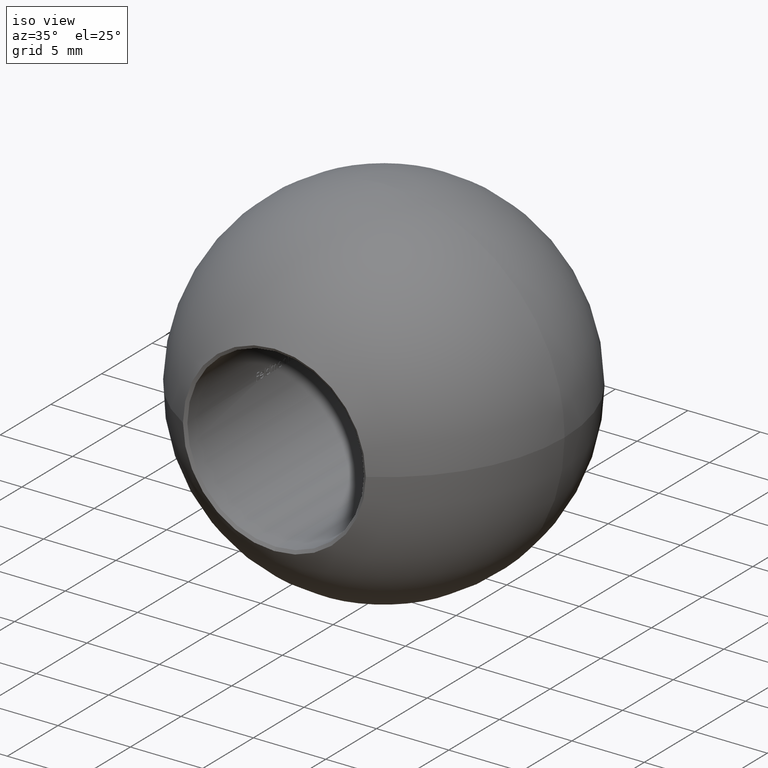
[diagram: clean part render]
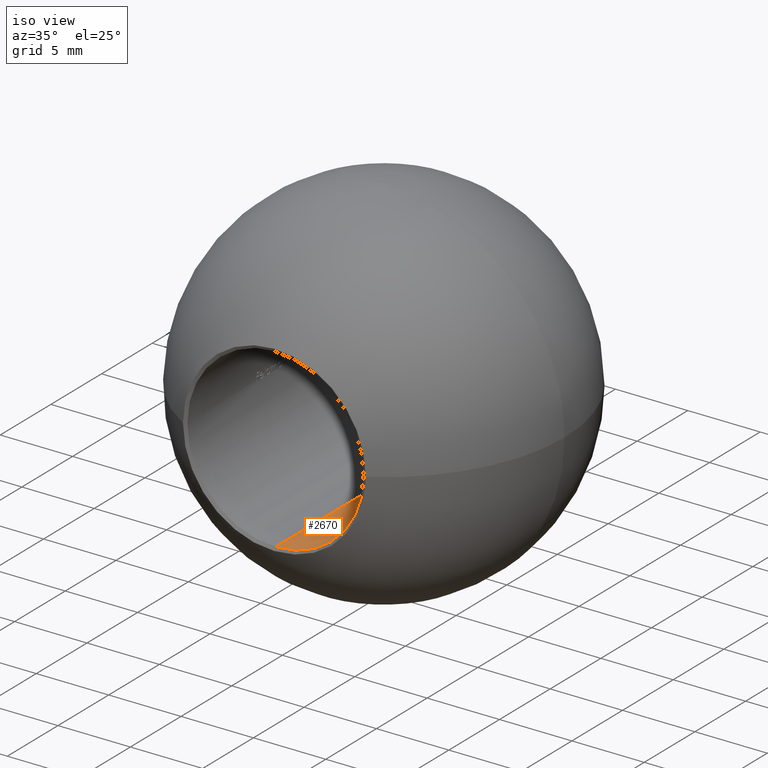
[diagram: same view with one face highlighted and labeled with its STEP entity id]
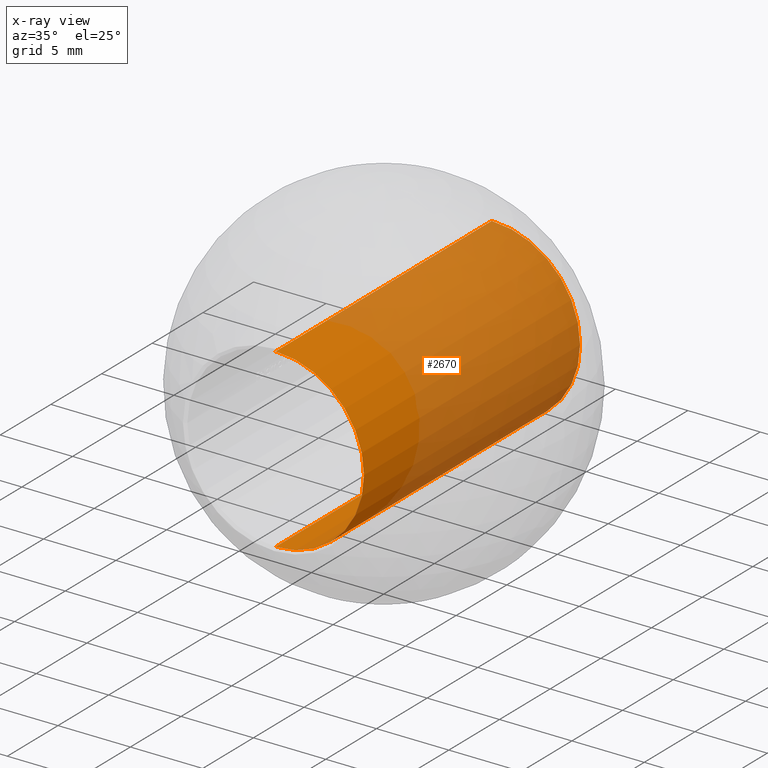
[diagram: x-ray of the same camera — body ghosted, the highlighted face saturated]
A machine part, iso view. The second image highlights one B-rep face of the part: STEP entity #2670.
The next image is the same camera in x-ray: the body ghosted, the highlighted face saturated — about 72% of this face is hidden behind the body in this view.
In plain terms, the highlighted cylindrical surface (partial cylindrical patch) has radius 6.1 mm, axis along (-0, 1, -0).
Its self-contained STEP definition (entity closure, byte-faithful):
#1229 = CIRCLE ( 'NONE', #2767, 6.100000000000000500 ) ;
#1273 = CARTESIAN_POINT ( 'NONE',  ( 2.584004746200915000E-015, 10.00000000000000000, -6.100000000000000500 ) ) ;
#1331 = CARTESIAN_POINT ( 'NONE',  ( 2.584004746200915000E-015, -10.66054535758868300, -6.100000000000000500 ) ) ;
#1904 = DIRECTION ( 'NONE',  ( -0.0000000000000000000, 1.000000000000000000, -0.0000000000000000000 ) ) ;
#2082 = ORIENTED_EDGE ( 'NONE', *, *, #4731, .T. ) ;
#2385 = AXIS2_PLACEMENT_3D ( 'NONE', #11103, #4617, #10951 ) ;
#2670 = ADVANCED_FACE ( 'NONE', ( #11065 ), #8371, .F. ) ;
#2767 = AXIS2_PLACEMENT_3D ( 'NONE', #11257, #7635, #4955 ) ;
#2777 = CARTESIAN_POINT ( 'NONE',  ( 1.836970198721029600E-015, 10.00000000000000000, 6.100000000000000500 ) ) ;
#3108 = VERTEX_POINT ( 'NONE', #4226 ) ;
#4226 = CARTESIAN_POINT ( 'NONE',  ( 2.584004746200915000E-015, 10.66054535758868800, -6.100000000000000500 ) ) ;
#4506 = LINE ( 'NONE', #2777, #9624 ) ;
#4527 = VERTEX_POINT ( 'NONE', #6500 ) ;
#4617 = DIRECTION ( 'NONE',  ( -0.0000000000000000000, 1.000000000000000000, -0.0000000000000000000 ) ) ;
#4731 = EDGE_CURVE ( 'NONE', #10949, #3108, #1229, .T. ) ;
#4955 = DIRECTION ( 'NONE',  ( 0.0000000000000000000, 0.0000000000000000000, -1.000000000000000000 ) ) ;
#4978 = VERTEX_POINT ( 'NONE', #1331 ) ;
#5175 = ORIENTED_EDGE ( 'NONE', *, *, #8769, .T. ) ;
#5209 = EDGE_CURVE ( 'NONE', #4527, #10949, #4506, .T. ) ;
#6500 = CARTESIAN_POINT ( 'NONE',  ( 1.836970198721029600E-015, -10.66054535758868300, 6.100000000000000500 ) ) ;
#6691 = CARTESIAN_POINT ( 'NONE',  ( 1.836970198721029600E-015, -10.66054535758868300, 0.0000000000000000000 ) ) ;
#7626 = DIRECTION ( 'NONE',  ( -0.0000000000000000000, 1.000000000000000000, -0.0000000000000000000 ) ) ;
#7635 = DIRECTION ( 'NONE',  ( 0.0000000000000000000, 1.000000000000000000, 0.0000000000000000000 ) ) ;
#7746 = CARTESIAN_POINT ( 'NONE',  ( 1.836970198721029600E-015, 10.66054535758868800, 6.100000000000000500 ) ) ;
#7945 = CIRCLE ( 'NONE', #10770, 6.100000000000000500 ) ;
#8371 = CYLINDRICAL_SURFACE ( 'NONE', #2385, 6.100000000000000500 ) ;
#8769 = EDGE_CURVE ( 'NONE', #4978, #4527, #7945, .T. ) ;
#9412 = VECTOR ( 'NONE', #7626, 1000.000000000000000 ) ;
#9425 = DIRECTION ( 'NONE',  ( -0.0000000000000000000, -1.000000000000000000, -0.0000000000000000000 ) ) ;
#9624 = VECTOR ( 'NONE', #1904, 1000.000000000000000 ) ;
#10062 = EDGE_CURVE ( 'NONE', #4978, #3108, #11541, .T. ) ;
#10419 = DIRECTION ( 'NONE',  ( 0.0000000000000000000, 0.0000000000000000000, 1.000000000000000000 ) ) ;
#10770 = AXIS2_PLACEMENT_3D ( 'NONE', #6691, #9425, #10419 ) ;
#10855 = ORIENTED_EDGE ( 'NONE', *, *, #5209, .T. ) ;
#10917 = EDGE_LOOP ( 'NONE', ( #10994, #5175, #10855, #2082 ) ) ;
#10949 = VERTEX_POINT ( 'NONE', #7746 ) ;
#10951 = DIRECTION ( 'NONE',  ( 0.0000000000000000000, 0.0000000000000000000, 1.000000000000000000 ) ) ;
#10994 = ORIENTED_EDGE ( 'NONE', *, *, #10062, .F. ) ;
#11065 = FACE_OUTER_BOUND ( 'NONE', #10917, .T. ) ;
#11103 = CARTESIAN_POINT ( 'NONE',  ( 1.836970198721029600E-015, 10.00000000000000000, 0.0000000000000000000 ) ) ;
#11257 = CARTESIAN_POINT ( 'NONE',  ( 1.836970198721029600E-015, 10.66054535758868800, 0.0000000000000000000 ) ) ;
#11541 = LINE ( 'NONE', #1273, #9412 ) ;